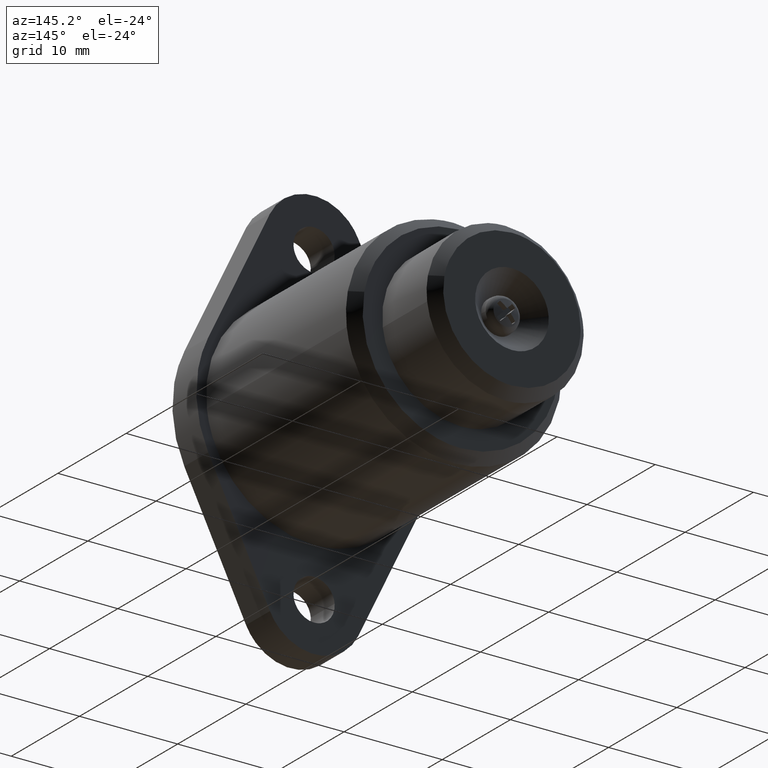
[diagram: clean part render]
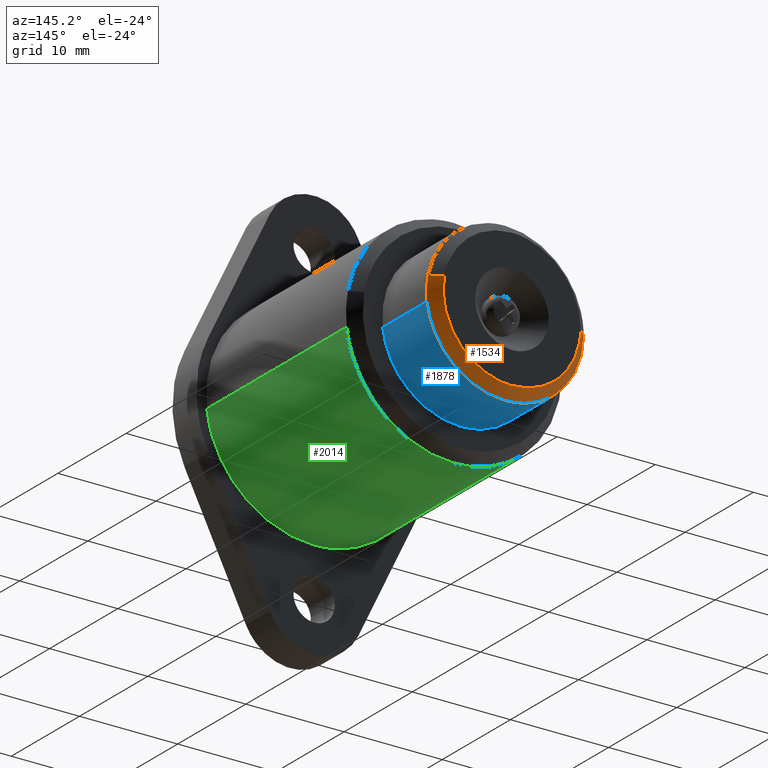
[diagram: same view with three faces highlighted in distinct colors, each labeled with its STEP entity id]
A machine part, auxiliary view with three faces highlighted in distinct colors.
Their STEP definitions:

[orange] entity #1534 — the highlighted face is a freeform B-spline surface patch.
#1337=CARTESIAN_POINT('',(7.864700997291186,27.999999999981160,1.464999506040496));
#1338=VERTEX_POINT('',#1337);
#1354=CARTESIAN_POINT('',(6.881611104913361,28.999999999999901,1.281875876920605));
#1355=VERTEX_POINT('',#1354);
#1356=CARTESIAN_POINT('',(6.881611104913361,28.999999999999901,1.281875876920605));
#1357=CARTESIAN_POINT('',(7.864700997291186,27.999999999981160,1.464999506040496));
#1358=QUASI_UNIFORM_CURVE('',1,(#1356,#1357),.UNSPECIFIED.,.F.,.U.);
#1359=EDGE_CURVE('',#1355,#1338,#1358,.T.);
#1376=CARTESIAN_POINT('',(-6.999751603255109,28.999999999996021,-0.061075274340515));
#1377=VERTEX_POINT('',#1376);
#1393=CARTESIAN_POINT('',(-7.999713526325029,27.999999999989878,-0.069801809883882));
#1394=VERTEX_POINT('',#1393);
#1395=CARTESIAN_POINT('',(-6.999751603255109,28.999999999996021,-0.061075274340515));
#1396=CARTESIAN_POINT('',(-7.999713526325029,27.999999999989878,-0.069801809883882));
#1397=QUASI_UNIFORM_CURVE('',1,(#1395,#1396),.UNSPECIFIED.,.F.,.U.);
#1398=EDGE_CURVE('',#1377,#1394,#1397,.T.);
#1433=CARTESIAN_POINT('',(-6.974752555174778,29.024999999999999,-0.060857110923956));
#1434=CARTESIAN_POINT('',(-6.913884970073620,29.025000000000006,-7.035591524296542));
#1435=CARTESIAN_POINT('',(0.060849443298968,29.024999999999999,-6.974723939195386));
#1436=CARTESIAN_POINT('',(7.035583856671555,29.025000000000006,-6.913856354094228));
#1437=CARTESIAN_POINT('',(6.974716271570397,29.024999999999999,0.060878059278360));
#1438=CARTESIAN_POINT('',(6.969363345416299,29.024999999999995,0.674262641518413));
#1439=CARTESIAN_POINT('',(6.857033857603708,29.025000000000006,1.277297786195716));
#1440=CARTESIAN_POINT('',(-8.025337550594079,27.974374999999998,-0.070025427281935));
#1441=CARTESIAN_POINT('',(-7.955301649134943,27.974375000000006,-8.095344836073824));
#1442=CARTESIAN_POINT('',(0.070017759656947,27.974374999999998,-8.025308934614687));
#1443=CARTESIAN_POINT('',(8.095337168448836,27.974375000000006,-7.955273033155549));
#1444=CARTESIAN_POINT('',(8.025301266989699,27.974374999999998,0.070046375636339));
#1445=CARTESIAN_POINT('',(8.019142044342317,27.974374999999991,0.775823384645705));
#1446=CARTESIAN_POINT('',(7.889892675793798,27.974374999999998,1.469692048875209));
#1454=(BOUNDED_SURFACE()B_SPLINE_SURFACE(2,1,((#1433,#1440),(#1434,#1441),(#1435,#1442),(#1436,#1443),(#1437,#1444),(#1438,#1445),(#1439,#1446)),.UNSPECIFIED.,.F.,.F.,.U.)B_SPLINE_SURFACE_WITH_KNOTS((3,2,2,3),(2,2),(0.0,13.297290886082290,26.594581772164570,28.190256678494450),(0.0,1.0),.UNSPECIFIED.)GEOMETRIC_REPRESENTATION_ITEM()RATIONAL_B_SPLINE_SURFACE(((1.0,1.0),(0.707106781186548,0.707106781186548),(1.0,1.0),(0.707106781186548,0.707106781186548),(1.0,1.0),(0.964852813742386,0.964852813742386),(0.938140952186599,0.938140952186599)))REPRESENTATION_ITEM('')SURFACE());
#1455=CARTESIAN_POINT('',(7.944058069103263,28.0,-0.944263403109490));
#1456=VERTEX_POINT('',#1455);
#1457=CARTESIAN_POINT('',(7.944058069103263,27.999999999999996,-0.944263403109490));
#1458=CARTESIAN_POINT('',(7.999981858197810,28.0,-0.473782483071048));
#1459=CARTESIAN_POINT('',(7.999981858197810,28.0,0.000010474177202));
#1460=CARTESIAN_POINT('',(7.999981858197810,27.999999999999996,0.738751081772694));
#1461=CARTESIAN_POINT('',(7.864700997291186,27.999999999981156,1.464999506040497));
#1469=(BOUNDED_CURVE()B_SPLINE_CURVE(2,(#1457,#1458,#1459,#1460,#1461),.UNSPECIFIED.,.F.,.U.)B_SPLINE_CURVE_WITH_KNOTS((3,2,3),(0.229562473514256,0.250000000000000,0.281445263719689),.UNSPECIFIED.)CURVE()GEOMETRIC_REPRESENTATION_ITEM()RATIONAL_B_SPLINE_CURVE((0.956026754185165,0.976055948332021,1.0,0.963159581970809,0.935586817225390))REPRESENTATION_ITEM(''));
#1470=EDGE_CURVE('',#1456,#1338,#1469,.T.);
#1471=ORIENTED_EDGE('',*,*,#1470,.F.);
#1472=CARTESIAN_POINT('',(-0.000018141802190,28.0,-7.999989525822797));
#1473=VERTEX_POINT('',#1472);
#1474=CARTESIAN_POINT('',(-0.000018141802190,28.0,-7.999989525822797));
#1475=CARTESIAN_POINT('',(7.105378065749977,28.0,-7.999989525822798));
#1476=CARTESIAN_POINT('',(7.944058069103263,28.0,-0.944263403109490));
#1484=(BOUNDED_CURVE()B_SPLINE_CURVE(2,(#1474,#1475,#1476),.UNSPECIFIED.,.F.,.U.)B_SPLINE_CURVE_WITH_KNOTS((3,3),(0.0,0.229562473514256),.UNSPECIFIED.)CURVE()GEOMETRIC_REPRESENTATION_ITEM()RATIONAL_B_SPLINE_CURVE((1.0,0.731050832854526,0.956026754185165))REPRESENTATION_ITEM(''));
#1485=EDGE_CURVE('',#1473,#1456,#1484,.T.);
#1486=ORIENTED_EDGE('',*,*,#1485,.F.);
#1487=CARTESIAN_POINT('',(-7.999713526325030,27.999999999989882,-0.069801809883882));
#1488=CARTESIAN_POINT('',(-7.930507826415282,28.0,-7.999989525822797));
#1489=CARTESIAN_POINT('',(-0.000018141802190,28.0,-7.999989525822797));
#1497=(BOUNDED_CURVE()B_SPLINE_CURVE(2,(#1487,#1488,#1489),.UNSPECIFIED.,.F.,.U.)B_SPLINE_CURVE_WITH_KNOTS((3,3),(0.751539894338246,1.0),.UNSPECIFIED.)CURVE()GEOMETRIC_REPRESENTATION_ITEM()RATIONAL_B_SPLINE_CURVE((0.996414028092864,0.708910879623994,1.0))REPRESENTATION_ITEM(''));
#1498=EDGE_CURVE('',#1394,#1473,#1497,.T.);
#1499=ORIENTED_EDGE('',*,*,#1498,.F.);
#1500=ORIENTED_EDGE('',*,*,#1398,.F.);
#1501=CARTESIAN_POINT('',(-0.000018141802190,29.0,-6.999989525822798));
#1502=VERTEX_POINT('',#1501);
#1503=CARTESIAN_POINT('',(-0.000018141802190,29.0,-6.999989525822798));
#1504=CARTESIAN_POINT('',(-6.939196615909407,29.000000000000004,-6.999989525822796));
#1505=CARTESIAN_POINT('',(-6.999751603255109,28.999999999996017,-0.061075274340515));
#1513=(BOUNDED_CURVE()B_SPLINE_CURVE(2,(#1503,#1504,#1505),.UNSPECIFIED.,.F.,.U.)B_SPLINE_CURVE_WITH_KNOTS((3,3),(0.0,0.248460105663550),.UNSPECIFIED.)CURVE()GEOMETRIC_REPRESENTATION_ITEM()RATIONAL_B_SPLINE_CURVE((1.0,0.708910879621889,0.996414028097020))REPRESENTATION_ITEM(''));
#1514=EDGE_CURVE('',#1502,#1377,#1513,.T.);
#1515=ORIENTED_EDGE('',*,*,#1514,.F.);
#1516=CARTESIAN_POINT('',(6.881611104913361,28.999999999999904,1.281875876920606));
#1517=CARTESIAN_POINT('',(6.999981858197809,28.999999999999996,0.646408505685819));
#1518=CARTESIAN_POINT('',(6.999981858197810,29.0,0.000010474177202));
#1519=CARTESIAN_POINT('',(6.999981858197810,29.000000000000007,-6.999989525822798));
#1520=CARTESIAN_POINT('',(-0.000018141802190,29.0,-6.999989525822798));
#1528=(BOUNDED_CURVE()B_SPLINE_CURVE(2,(#1516,#1517,#1518,#1519,#1520),.UNSPECIFIED.,.F.,.U.)B_SPLINE_CURVE_WITH_KNOTS((3,2,3),(0.718554736286750,0.750000000000000,1.0),.UNSPECIFIED.)CURVE()GEOMETRIC_REPRESENTATION_ITEM()RATIONAL_B_SPLINE_CURVE((0.935586817236683,0.963159581978354,1.0,0.707106781186547,1.0))REPRESENTATION_ITEM(''));
#1529=EDGE_CURVE('',#1355,#1502,#1528,.T.);
#1530=ORIENTED_EDGE('',*,*,#1529,.F.);
#1531=ORIENTED_EDGE('',*,*,#1359,.T.);
#1532=EDGE_LOOP('',(#1471,#1486,#1499,#1500,#1515,#1530,#1531));
#1533=FACE_OUTER_BOUND('',#1532,.T.);
#1534=ADVANCED_FACE('',(#1533),#1454,.T.);

[blue] entity #1878 — the highlighted face is a freeform B-spline surface patch.
#1393=CARTESIAN_POINT('',(-7.999713526325029,27.999999999989878,-0.069801809883882));
#1394=VERTEX_POINT('',#1393);
#1400=CARTESIAN_POINT('',(-7.985096529174710,28.0,0.488398790495545));
#1401=VERTEX_POINT('',#1400);
#1402=CARTESIAN_POINT('',(-7.985096529174710,28.0,0.488398790495545));
#1403=CARTESIAN_POINT('',(-8.000018141802190,27.999999999999996,0.244432580605510));
#1404=CARTESIAN_POINT('',(-8.000018141802190,28.0,0.000010474177202));
#1405=CARTESIAN_POINT('',(-8.000018141802190,27.999999999999996,-0.034896332462424));
#1406=CARTESIAN_POINT('',(-7.999713526325029,27.999999999989878,-0.069801809883882));
#1414=(BOUNDED_CURVE()B_SPLINE_CURVE(2,(#1402,#1403,#1404,#1405,#1406),.UNSPECIFIED.,.F.,.U.)B_SPLINE_CURVE_WITH_KNOTS((3,2,3),(0.739332962240262,0.750000000000000,0.751539894338246),.UNSPECIFIED.)CURVE()GEOMETRIC_REPRESENTATION_ITEM()RATIONAL_B_SPLINE_CURVE((0.976072041669544,0.987502787901383,1.0,0.998195901562554,0.996414028092863))REPRESENTATION_ITEM(''));
#1415=EDGE_CURVE('',#1401,#1394,#1414,.T.);
#1455=CARTESIAN_POINT('',(7.944058069103263,28.0,-0.944263403109490));
#1456=VERTEX_POINT('',#1455);
#1472=CARTESIAN_POINT('',(-0.000018141802190,28.0,-7.999989525822797));
#1473=VERTEX_POINT('',#1472);
#1474=CARTESIAN_POINT('',(-0.000018141802190,28.0,-7.999989525822797));
#1475=CARTESIAN_POINT('',(7.105378065749977,28.0,-7.999989525822798));
#1476=CARTESIAN_POINT('',(7.944058069103263,28.0,-0.944263403109490));
#1484=(BOUNDED_CURVE()B_SPLINE_CURVE(2,(#1474,#1475,#1476),.UNSPECIFIED.,.F.,.U.)B_SPLINE_CURVE_WITH_KNOTS((3,3),(0.0,0.229562473514256),.UNSPECIFIED.)CURVE()GEOMETRIC_REPRESENTATION_ITEM()RATIONAL_B_SPLINE_CURVE((1.0,0.731050832854526,0.956026754185165))REPRESENTATION_ITEM(''));
#1485=EDGE_CURVE('',#1473,#1456,#1484,.T.);
#1487=CARTESIAN_POINT('',(-7.999713526325030,27.999999999989882,-0.069801809883882));
#1488=CARTESIAN_POINT('',(-7.930507826415282,28.0,-7.999989525822797));
#1489=CARTESIAN_POINT('',(-0.000018141802190,28.0,-7.999989525822797));
#1497=(BOUNDED_CURVE()B_SPLINE_CURVE(2,(#1487,#1488,#1489),.UNSPECIFIED.,.F.,.U.)B_SPLINE_CURVE_WITH_KNOTS((3,3),(0.751539894338246,1.0),.UNSPECIFIED.)CURVE()GEOMETRIC_REPRESENTATION_ITEM()RATIONAL_B_SPLINE_CURVE((0.996414028092864,0.708910879623994,1.0))REPRESENTATION_ITEM(''));
#1498=EDGE_CURVE('',#1394,#1473,#1497,.T.);
#1776=CARTESIAN_POINT('',(-7.985096529174710,21.500000000000000,0.488398790495547));
#1777=VERTEX_POINT('',#1776);
#1778=CARTESIAN_POINT('',(-7.985096529174710,28.0,0.488398790495545));
#1779=CARTESIAN_POINT('',(-7.985096529174710,21.500000000000000,0.488398790495547));
#1780=QUASI_UNIFORM_CURVE('',1,(#1778,#1779),.UNSPECIFIED.,.F.,.U.);
#1781=EDGE_CURVE('',#1401,#1777,#1780,.T.);
#1798=CARTESIAN_POINT('',(7.944058069103263,21.500000000000000,-0.944263403109490));
#1799=VERTEX_POINT('',#1798);
#1815=CARTESIAN_POINT('',(7.944058069103263,28.0,-0.944263403109490));
#1816=CARTESIAN_POINT('',(7.944058069103263,21.500000000000000,-0.944263403109490));
#1817=QUASI_UNIFORM_CURVE('',1,(#1815,#1816),.UNSPECIFIED.,.F.,.U.);
#1818=EDGE_CURVE('',#1456,#1799,#1817,.T.);
#1823=CARTESIAN_POINT('',(-7.985096529177124,28.162500000000009,0.488398790456058));
#1824=CARTESIAN_POINT('',(-8.473484845455982,28.162500000000005,-7.496679596918876));
#1825=CARTESIAN_POINT('',(-0.488406458081046,28.162500000000009,-7.985067913197732));
#1826=CARTESIAN_POINT('',(7.052329784913819,28.162499999999998,-8.446279099683018));
#1827=CARTESIAN_POINT('',(7.944058069107141,28.162500000000005,-0.944263403076866));
#1828=CARTESIAN_POINT('',(-7.985096529177124,21.333437499999999,0.488398790456058));
#1829=CARTESIAN_POINT('',(-8.473484845455982,21.333437499999988,-7.496679596918876));
#1830=CARTESIAN_POINT('',(-0.488406458081046,21.333437499999999,-7.985067913197732));
#1831=CARTESIAN_POINT('',(7.052329784913819,21.333437499999995,-8.446279099683018));
#1832=CARTESIAN_POINT('',(7.944058069107141,21.333437499999995,-0.944263403076866));
#1840=(BOUNDED_SURFACE()B_SPLINE_SURFACE(2,1,((#1823,#1828),(#1824,#1829),(#1825,#1830),(#1826,#1831),(#1827,#1832)),.UNSPECIFIED.,.F.,.F.,.U.)B_SPLINE_SURFACE_WITH_KNOTS((3,2,3),(2,2),(0.0,13.254833995939039,25.979474632040510),(0.0,6.829062500000013),.UNSPECIFIED.)GEOMETRIC_REPRESENTATION_ITEM()RATIONAL_B_SPLINE_SURFACE(((1.0,1.0),(0.707106781186548,0.707106781186548),(1.0,1.0),(0.718822509939086,0.718822509939086),(0.977505800795127,0.977505800795127)))REPRESENTATION_ITEM('')SURFACE());
#1841=ORIENTED_EDGE('',*,*,#1485,.T.);
#1842=ORIENTED_EDGE('',*,*,#1818,.T.);
#1843=CARTESIAN_POINT('',(-0.000018141802190,21.500000000000000,-7.999989525822797));
#1844=VERTEX_POINT('',#1843);
#1845=CARTESIAN_POINT('',(-0.000018141802190,21.500000000000000,-7.999989525822797));
#1846=CARTESIAN_POINT('',(7.105378065749977,21.500000000000000,-7.999989525822798));
#1847=CARTESIAN_POINT('',(7.944058069103263,21.500000000000004,-0.944263403109490));
#1855=(BOUNDED_CURVE()B_SPLINE_CURVE(2,(#1845,#1846,#1847),.UNSPECIFIED.,.F.,.U.)B_SPLINE_CURVE_WITH_KNOTS((3,3),(0.0,0.229562473514256),.UNSPECIFIED.)CURVE()GEOMETRIC_REPRESENTATION_ITEM()RATIONAL_B_SPLINE_CURVE((1.0,0.731050832854526,0.956026754185165))REPRESENTATION_ITEM(''));
#1856=EDGE_CURVE('',#1844,#1799,#1855,.T.);
#1857=ORIENTED_EDGE('',*,*,#1856,.F.);
#1858=CARTESIAN_POINT('',(-7.985096529174710,21.500000000000000,0.488398790495547));
#1859=CARTESIAN_POINT('',(-8.000018141802190,21.499999999999996,0.244432580605513));
#1860=CARTESIAN_POINT('',(-8.000018141802190,21.500000000000000,0.000010474177202));
#1861=CARTESIAN_POINT('',(-8.000018141802190,21.499999999999996,-7.999989525822797));
#1862=CARTESIAN_POINT('',(-0.000018141802190,21.500000000000000,-7.999989525822797));
#1870=(BOUNDED_CURVE()B_SPLINE_CURVE(2,(#1858,#1859,#1860,#1861,#1862),.UNSPECIFIED.,.F.,.U.)B_SPLINE_CURVE_WITH_KNOTS((3,2,3),(0.739332962240262,0.750000000000000,1.0),.UNSPECIFIED.)CURVE()GEOMETRIC_REPRESENTATION_ITEM()RATIONAL_B_SPLINE_CURVE((0.976072041669544,0.987502787901382,1.0,0.707106781186548,1.0))REPRESENTATION_ITEM(''));
#1871=EDGE_CURVE('',#1777,#1844,#1870,.T.);
#1872=ORIENTED_EDGE('',*,*,#1871,.F.);
#1873=ORIENTED_EDGE('',*,*,#1781,.F.);
#1874=ORIENTED_EDGE('',*,*,#1415,.T.);
#1875=ORIENTED_EDGE('',*,*,#1498,.T.);
#1876=EDGE_LOOP('',(#1841,#1842,#1857,#1872,#1873,#1874,#1875));
#1877=FACE_OUTER_BOUND('',#1876,.T.);
#1878=ADVANCED_FACE('',(#1877),#1840,.T.);

[green] entity #2014 — the highlighted face is a freeform B-spline surface patch.
#1609=CARTESIAN_POINT('',(-10.999599295508210,20.499999999999851,-0.095981416306012));
#1610=VERTEX_POINT('',#1609);
#1616=CARTESIAN_POINT('',(-10.979501921032050,20.500000000000000,0.671528114572407));
#1617=VERTEX_POINT('',#1616);
#1618=CARTESIAN_POINT('',(-10.979501921032043,20.500000000000000,0.671528114572407));
#1619=CARTESIAN_POINT('',(-11.000018141802189,20.500000000000000,0.336082700374415));
#1620=CARTESIAN_POINT('',(-11.000018141802190,20.500000000000000,0.000010474177202));
#1621=CARTESIAN_POINT('',(-11.000018141802196,20.500000000000004,-0.047986384851583));
#1622=CARTESIAN_POINT('',(-10.999599295508210,20.499999999999854,-0.095981416306012));
#1630=(BOUNDED_CURVE()B_SPLINE_CURVE(2,(#1618,#1619,#1620,#1621,#1622),.UNSPECIFIED.,.F.,.U.)B_SPLINE_CURVE_WITH_KNOTS((3,2,3),(0.739333218316159,0.750000000000000,0.751539894335021),.UNSPECIFIED.)CURVE()GEOMETRIC_REPRESENTATION_ITEM()RATIONAL_B_SPLINE_CURVE((0.976072590489553,0.987503087912958,1.0,0.998195901566332,0.996414028100327))REPRESENTATION_ITEM(''));
#1631=EDGE_CURVE('',#1617,#1610,#1630,.T.);
#1671=CARTESIAN_POINT('',(10.923088527486559,20.500000000000000,-1.298350296597248));
#1672=VERTEX_POINT('',#1671);
#1688=CARTESIAN_POINT('',(-0.000018141802190,20.500000000000000,-10.999989525822800));
#1689=VERTEX_POINT('',#1688);
#1690=CARTESIAN_POINT('',(-0.000018141802190,20.500000000000000,-10.999989525822800));
#1691=CARTESIAN_POINT('',(9.769915884512972,20.500000000000000,-10.999989525822796));
#1692=CARTESIAN_POINT('',(10.923088527486559,20.499999999999996,-1.298350296597247));
#1700=(BOUNDED_CURVE()B_SPLINE_CURVE(2,(#1690,#1691,#1692),.UNSPECIFIED.,.F.,.U.)B_SPLINE_CURVE_WITH_KNOTS((3,3),(0.0,0.229562718136353),.UNSPECIFIED.)CURVE()GEOMETRIC_REPRESENTATION_ITEM()RATIONAL_B_SPLINE_CURVE((1.0,0.731050546261914,0.956027233655045))REPRESENTATION_ITEM(''));
#1701=EDGE_CURVE('',#1689,#1672,#1700,.T.);
#1703=CARTESIAN_POINT('',(-10.999599295508215,20.499999999999851,-0.095981416306012));
#1704=CARTESIAN_POINT('',(-10.904441458344772,20.499999999999996,-10.999989525822796));
#1705=CARTESIAN_POINT('',(-0.000018141802190,20.500000000000000,-10.999989525822800));
#1713=(BOUNDED_CURVE()B_SPLINE_CURVE(2,(#1703,#1704,#1705),.UNSPECIFIED.,.F.,.U.)B_SPLINE_CURVE_WITH_KNOTS((3,3),(0.751539894335022,1.0),.UNSPECIFIED.)CURVE()GEOMETRIC_REPRESENTATION_ITEM()RATIONAL_B_SPLINE_CURVE((0.996414028100324,0.708910879620217,1.0))REPRESENTATION_ITEM(''));
#1714=EDGE_CURVE('',#1610,#1689,#1713,.T.);
#1905=CARTESIAN_POINT('',(10.923088550968760,-2.402156E-014,-1.298350099039061));
#1906=VERTEX_POINT('',#1905);
#1924=CARTESIAN_POINT('',(10.923088527486559,20.500000000000000,-1.298350296597248));
#1925=CARTESIAN_POINT('',(10.923088550968760,-2.402156E-014,-1.298350099039061));
#1926=QUASI_UNIFORM_CURVE('',1,(#1924,#1925),.UNSPECIFIED.,.F.,.U.);
#1927=EDGE_CURVE('',#1672,#1906,#1926,.T.);
#1932=CARTESIAN_POINT('',(-10.979501933485819,-3.114176E-014,0.671527910945007));
#1933=VERTEX_POINT('',#1932);
#1934=CARTESIAN_POINT('',(-10.979501921032050,20.500000000000000,0.671528114572407));
#1935=CARTESIAN_POINT('',(-10.979501933485819,-3.114176E-014,0.671527910945007));
#1936=QUASI_UNIFORM_CURVE('',1,(#1934,#1935),.UNSPECIFIED.,.F.,.U.);
#1937=EDGE_CURVE('',#1617,#1933,#1936,.T.);
#1955=CARTESIAN_POINT('',(-10.970248048295101,21.012500000000006,0.822827596812625));
#1956=CARTESIAN_POINT('',(-10.974861246278207,21.012500000000017,0.747402476506204));
#1957=CARTESIAN_POINT('',(-11.651034859326153,21.012499999999999,-10.307938373579905));
#1958=CARTESIAN_POINT('',(-0.671552076685617,21.012499999999999,-10.979472308463331));
#1959=CARTESIAN_POINT('',(9.696960257432322,21.012500000000003,-11.613637689880601));
#1960=CARTESIAN_POINT('',(10.932267130460584,21.012499999999999,-1.221131681206832));
#1961=CARTESIAN_POINT('',(10.941398272191186,21.012499999999999,-1.144312352039864));
#1962=CARTESIAN_POINT('',(-10.970248048295101,-0.525312499999998,0.822827596812625));
#1963=CARTESIAN_POINT('',(-10.974861246278207,-0.525312499999999,0.747402476506204));
#1964=CARTESIAN_POINT('',(-11.651034859326153,-0.525312499999998,-10.307938373579905));
#1965=CARTESIAN_POINT('',(-0.671552076685617,-0.525312499999998,-10.979472308463331));
#1966=CARTESIAN_POINT('',(9.696960257432322,-0.525312499999998,-11.613637689880601));
#1967=CARTESIAN_POINT('',(10.932267130460584,-0.525312499999998,-1.221131681206832));
#1968=CARTESIAN_POINT('',(10.941398272191186,-0.525312499999998,-1.144312352039864));
#1976=(BOUNDED_SURFACE()B_SPLINE_SURFACE(2,1,((#1955,#1962),(#1956,#1963),(#1957,#1964),(#1958,#1965),(#1959,#1966),(#1960,#1967),(#1961,#1968)),.UNSPECIFIED.,.F.,.F.,.U.)B_SPLINE_SURFACE_WITH_KNOTS((3,1,2,1,3),(2,2),(0.0,0.178589754936117,18.403986499352300,35.900367373991827,36.078994716507289),(0.0,21.537812500000008),.UNSPECIFIED.)GEOMETRIC_REPRESENTATION_ITEM()RATIONAL_B_SPLINE_SURFACE(((1.005740092125717,1.005740092125717),(1.002870046062858,1.002870046062858),(0.707106781186548,0.707106781186548),(1.0,1.0),(0.718822509939086,0.718822509939086),(0.980146798903813,0.980146798903813),(0.982787797012498,0.982787797012498)))REPRESENTATION_ITEM('')SURFACE());
#1977=CARTESIAN_POINT('',(-0.000018141802190,0.0,-10.999989525822800));
#1978=VERTEX_POINT('',#1977);
#1979=CARTESIAN_POINT('',(-0.000018141802190,0.0,-10.999989525822800));
#1980=CARTESIAN_POINT('',(9.769916062458439,0.0,-10.999989525822796));
#1981=CARTESIAN_POINT('',(10.923088550968760,-2.402156E-014,-1.298350099039061));
#1989=(BOUNDED_CURVE()B_SPLINE_CURVE(2,(#1979,#1980,#1981),.UNSPECIFIED.,.F.,.U.)B_SPLINE_CURVE_WITH_KNOTS((3,3),(0.500000000000000,0.729562721192991),.UNSPECIFIED.)CURVE()GEOMETRIC_REPRESENTATION_ITEM()RATIONAL_B_SPLINE_CURVE((1.0,0.731050542680839,0.956027239646196))REPRESENTATION_ITEM(''));
#1990=EDGE_CURVE('',#1978,#1906,#1989,.T.);
#1991=ORIENTED_EDGE('',*,*,#1990,.F.);
#1992=CARTESIAN_POINT('',(-10.979501933485821,-3.114176E-014,0.671527910945007));
#1993=CARTESIAN_POINT('',(-11.000018141802192,0.0,0.336082598275263));
#1994=CARTESIAN_POINT('',(-11.000018141802190,0.0,0.000010474177202));
#1995=CARTESIAN_POINT('',(-11.000018141802190,0.0,-10.999989525822796));
#1996=CARTESIAN_POINT('',(-0.000018141802190,0.0,-10.999989525822800));
#2004=(BOUNDED_CURVE()B_SPLINE_CURVE(2,(#1992,#1993,#1994,#1995,#1996),.UNSPECIFIED.,.F.,.U.)B_SPLINE_CURVE_WITH_KNOTS((3,2,3),(0.239333221516243,0.250000000000000,0.500000000000000),.UNSPECIFIED.)CURVE()GEOMETRIC_REPRESENTATION_ITEM()RATIONAL_B_SPLINE_CURVE((0.976072597347958,0.987503091662090,1.0,0.707106781186548,1.0))REPRESENTATION_ITEM(''));
#2005=EDGE_CURVE('',#1933,#1978,#2004,.T.);
#2006=ORIENTED_EDGE('',*,*,#2005,.F.);
#2007=ORIENTED_EDGE('',*,*,#1937,.F.);
#2008=ORIENTED_EDGE('',*,*,#1631,.T.);
#2009=ORIENTED_EDGE('',*,*,#1714,.T.);
#2010=ORIENTED_EDGE('',*,*,#1701,.T.);
#2011=ORIENTED_EDGE('',*,*,#1927,.T.);
#2012=EDGE_LOOP('',(#1991,#2006,#2007,#2008,#2009,#2010,#2011));
#2013=FACE_OUTER_BOUND('',#2012,.T.);
#2014=ADVANCED_FACE('',(#2013),#1976,.T.);